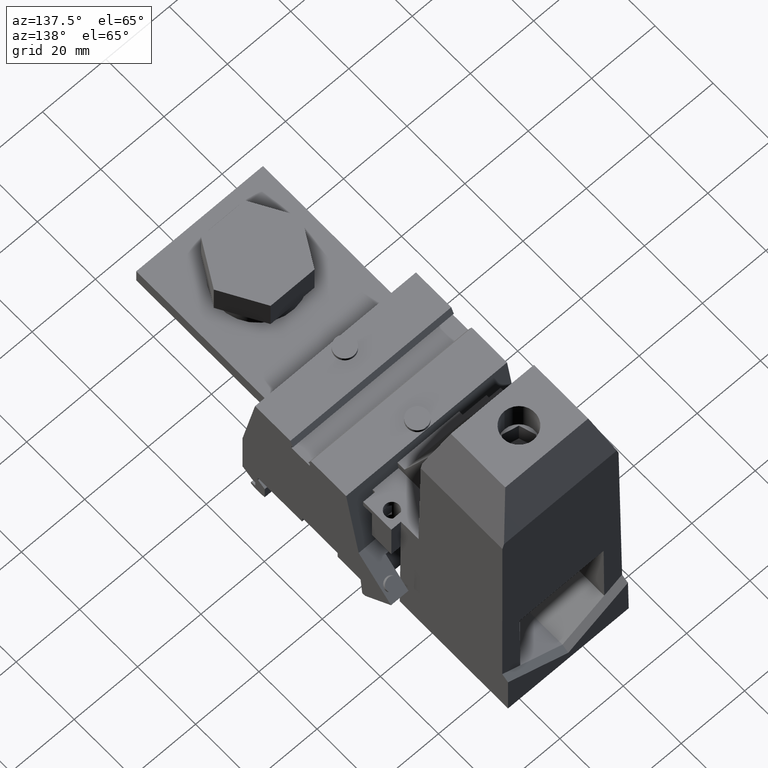
[diagram: clean part render]
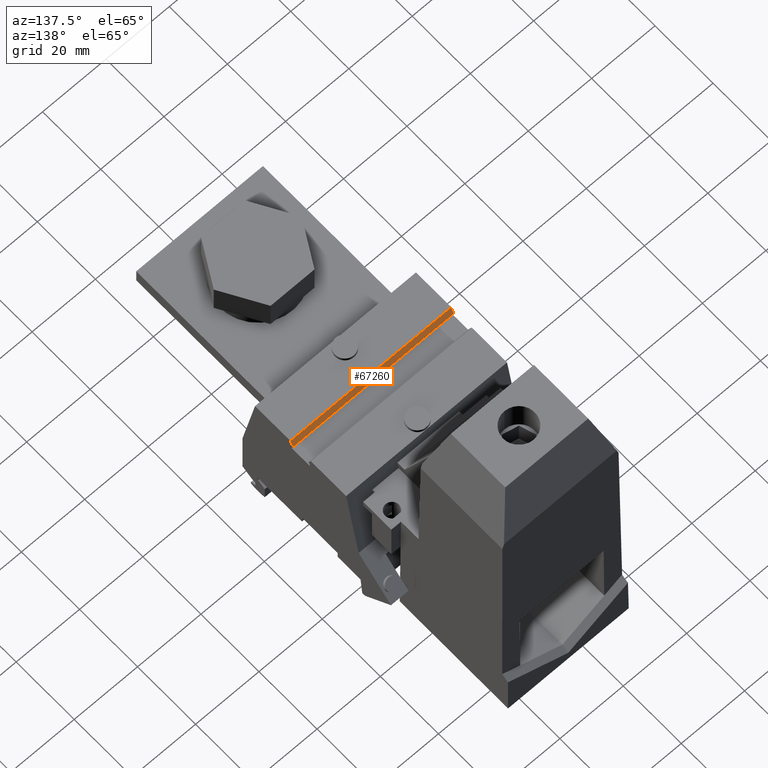
[diagram: same view with one face highlighted and labeled with its STEP entity id]
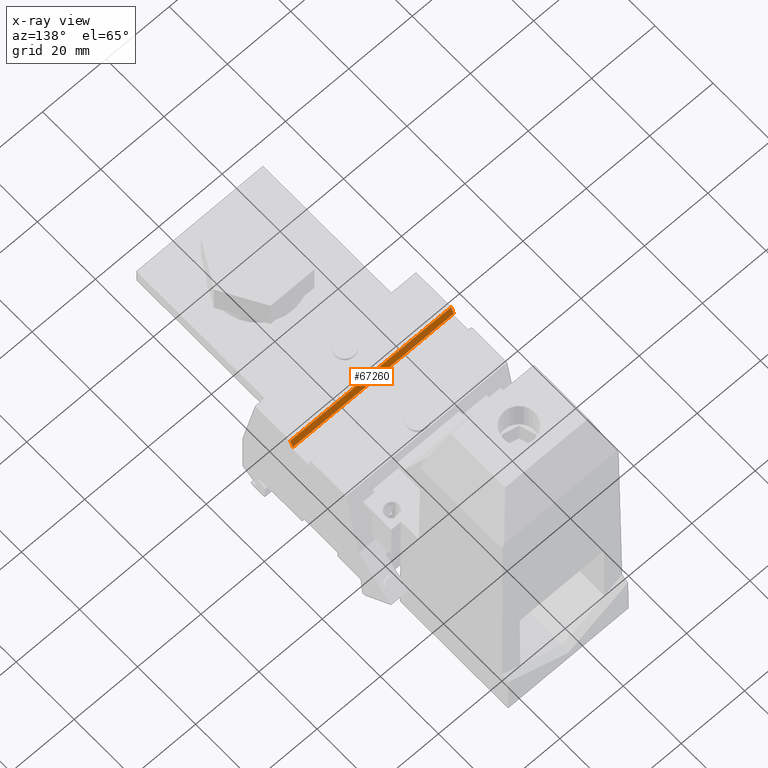
[diagram: x-ray of the same camera — body ghosted, the highlighted face saturated]
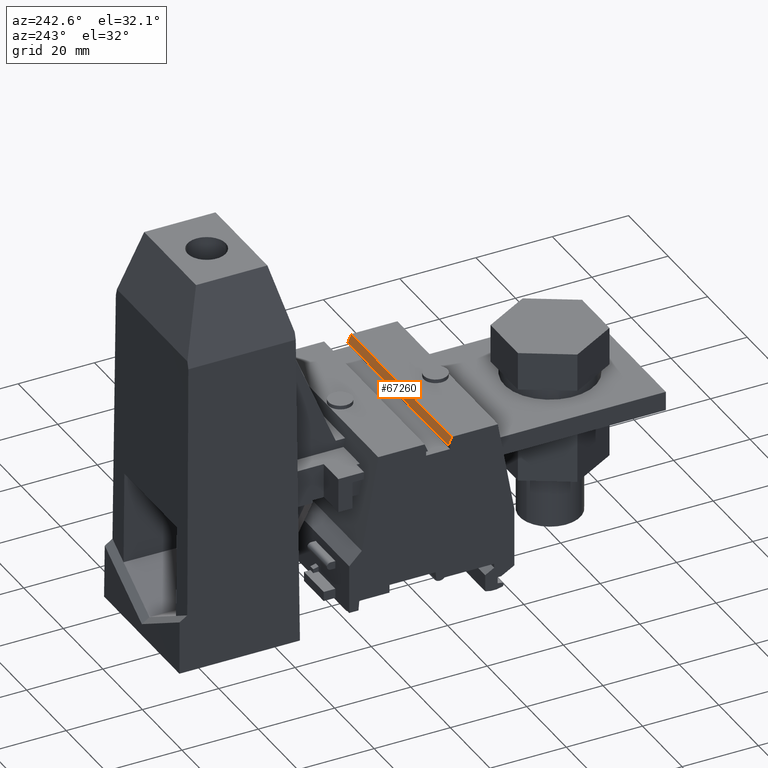
[diagram: same view with one face highlighted and labeled with its STEP entity id]
A machine part, auxiliary view. The second image highlights one B-rep face of the part: STEP entity #67260.
The next image is the same camera in x-ray: the body ghosted, the highlighted face saturated — about 0% of this face is hidden behind the body in this view.
A second angle (auxiliary view) of the same face is appended — the face is thin or edge-on in the first view.
In plain terms, the highlighted planar face has unit normal (0, -0.9205, -0.3908).
Its self-contained STEP definition (entity closure, byte-faithful):
#1410=CARTESIAN_POINT('',(-237.969569201959,768.461092873312,27.6));
#1420=VERTEX_POINT('',#1410);
#1450=CARTESIAN_POINT('',(-237.869168899538,768.697537159749,27.6));
#1460=DIRECTION('',(0.390848743748363,0.920454919868609,0.));
#1470=VECTOR('',#1460,1.);
#1480=LINE('',#1450,#1470);
#1490=CARTESIAN_POINT('',(-237.069362881301,770.581092873312,27.6));
#1500=VERTEX_POINT('',#1490);
#1510=EDGE_CURVE('',#1420,#1500,#1480,.T.);
#10070=CARTESIAN_POINT('',(-237.969569201959,768.461092873312,-23.2));
#10080=VERTEX_POINT('',#10070);
#10110=CARTESIAN_POINT('',(-237.969569201959,768.461092873311,0.));
#10120=DIRECTION('',(0.,0.,1.));
#10130=VECTOR('',#10120,1.);
#10140=LINE('',#10110,#10130);
#10150=EDGE_CURVE('',#10080,#1420,#10140,.T.);
#48700=CARTESIAN_POINT('',(-237.069362881301,770.581092873311,27.6));
#48710=DIRECTION('',(0.,0.,1.));
#48720=VECTOR('',#48710,1.);
#48730=LINE('',#48700,#48720);
#48740=CARTESIAN_POINT('',(-237.069362881301,770.581092873312,-23.2));
#48750=VERTEX_POINT('',#48740);
#48760=EDGE_CURVE('',#48750,#1500,#48730,.T.);
#67100=CARTESIAN_POINT('',(-237.869168899538,768.697537159749,27.6));
#67110=DIRECTION('',(0.920454919868609,-0.390848743748363,0.));
#67120=DIRECTION('',(-0.390848743748363,-0.920454919868609,0.));
#67130=AXIS2_PLACEMENT_3D('',#67100,#67110,#67120);
#67140=PLANE('',#67130);
#67150=ORIENTED_EDGE('',*,*,#1510,.T.);
#67160=ORIENTED_EDGE('',*,*,#10150,.T.);
#67170=CARTESIAN_POINT('',(-253.247599115769,732.481092873311,-23.2));
#67180=DIRECTION('',(-0.390848743748363,-0.920454919868609,0.));
#67190=VECTOR('',#67180,1.);
#67200=LINE('',#67170,#67190);
#67210=EDGE_CURVE('',#48750,#10080,#67200,.T.);
#67220=ORIENTED_EDGE('',*,*,#67210,.T.);
#67230=ORIENTED_EDGE('',*,*,#48760,.F.);
#67240=EDGE_LOOP('',(#67230,#67220,#67160,#67150));
#67250=FACE_OUTER_BOUND('',#67240,.T.);
#67260=ADVANCED_FACE('',(#67250),#67140,.F.);